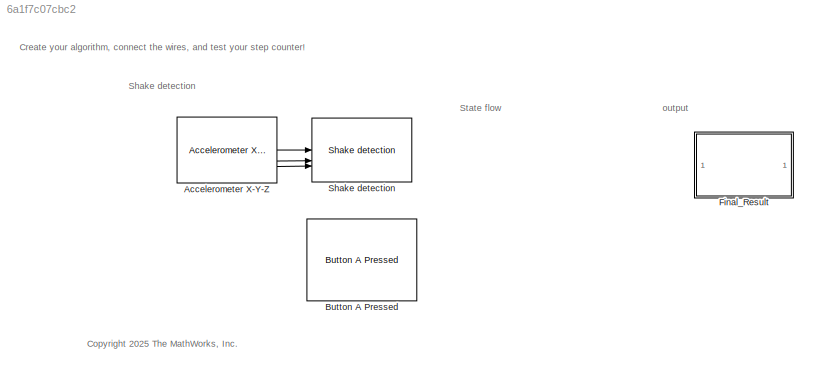
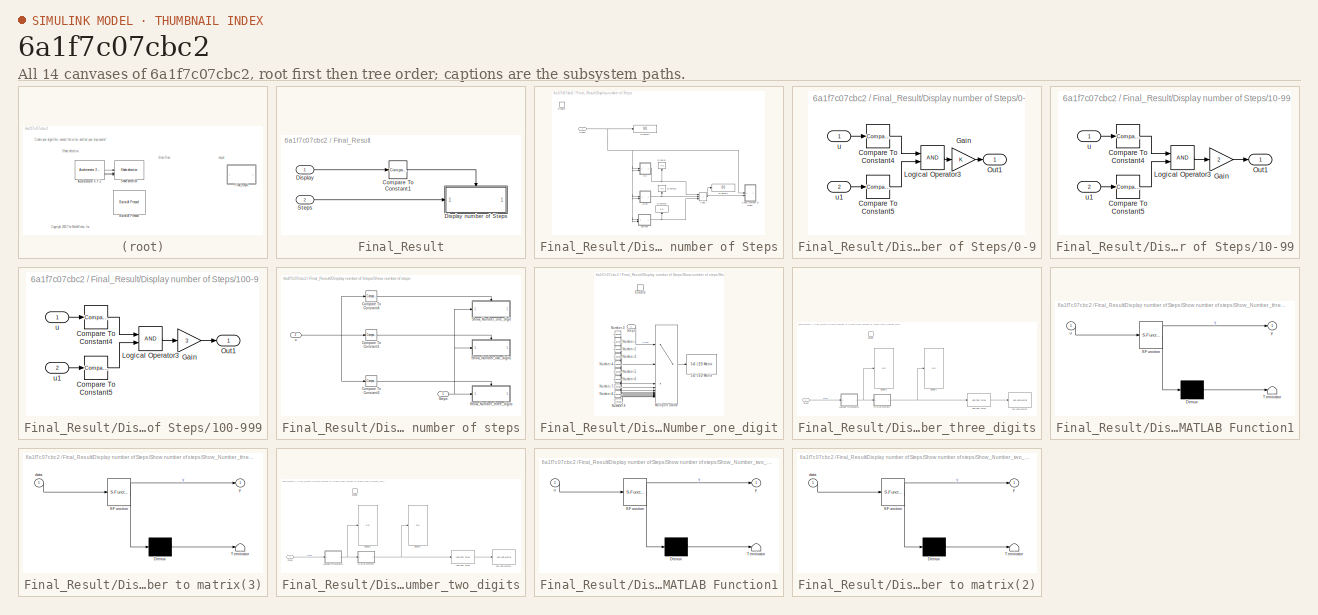
[diagram: thumbnail index - all 14 canvases of the model, root first then tree order]
MODEL slx_6a1f7c07cbc2
KIND model
CONFIG AbsTol = auto
CONFIG EnableMultiTasking = off
CONFIG FixedStep = auto
CONFIG MaxStep = auto
CONFIG MinStep = auto
CONFIG RelTol = 1e-3
CONFIG SampleTimeConstraint = Unconstrained
CONFIG SolverName = FixedStepDiscrete
CONFIG StartTime = 0.0
CONFIG StopTime = inf
BLOCK [Reference] Accelerometer X-Y-Z  REF=microbitaccellib/Accelerometer X-Y-Z
  SourceBlock = microbitaccellib/Accelerometer X-Y-Z
  SourceType = BBC micro:bit Accelerometer X-Y-Z
BLOCK [Reference] Button A Pressed  REF=microbitbuttonlib/Button A Pressed
  SourceBlock = microbitbuttonlib/Button A Pressed
  SourceType = BBC micro:bit Button A Pressed
BLOCK [SubSystem] Final_Result
BLOCK [Reference] Final_Result/Compare To Constant1  REF=simulink/Logic and Bit
Operations/Compare
To Constant
  SourceBlock = simulink/Logic and Bit\nOperations/Compare\nTo Constant
  SourceType = Compare To Constant
BLOCK [Inport] Final_Result/Display
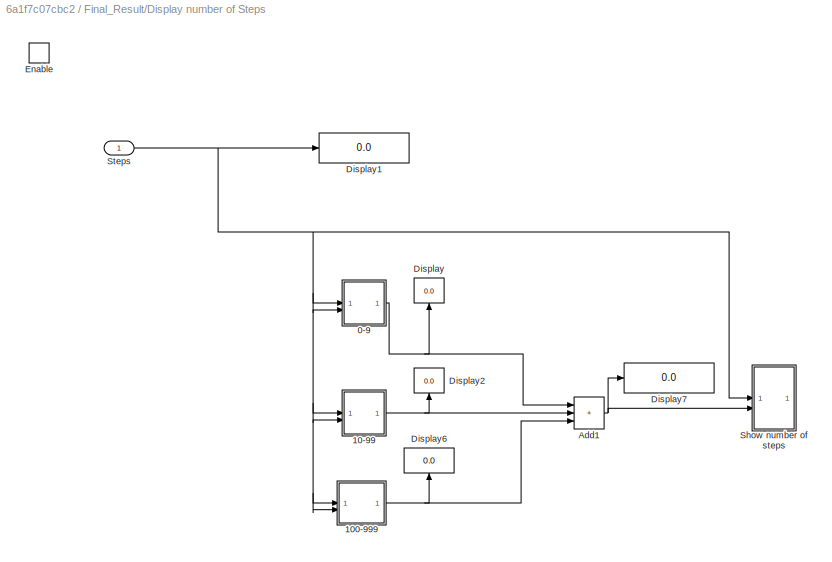
BLOCK [SubSystem] Final_Result/Display number of Steps
  TreatAsAtomicUnit = on
BLOCK [SubSystem] Final_Result/Display number of Steps/0-9
BLOCK [Reference] Final_Result/Display number of Steps/0-9/Compare To Constant4  REF=simulink/Logic and Bit
Operations/Compare
To Constant
  SourceBlock = simulink/Logic and Bit\nOperations/Compare\nTo Constant
  SourceType = Compare To Constant
BLOCK [Reference] Final_Result/Display number of Steps/0-9/Compare To Constant5  REF=simulink/Logic and Bit
Operations/Compare
To Constant
  SourceBlock = simulink/Logic and Bit\nOperations/Compare\nTo Constant
  SourceType = Compare To Constant
BLOCK [Gain] Final_Result/Display number of Steps/0-9/Gain
BLOCK [Logic] Final_Result/Display number of Steps/0-9/Logical Operator3
  AllPortsSameDT = off
  OutDataTypeStr = boolean
BLOCK [Outport] Final_Result/Display number of Steps/0-9/Out1
BLOCK [Inport] Final_Result/Display number of Steps/0-9/u
BLOCK [Inport] Final_Result/Display number of Steps/0-9/u1
  Port = 2
BLOCK [SubSystem] Final_Result/Display number of Steps/10-99
BLOCK [Reference] Final_Result/Display number of Steps/10-99/Compare To Constant4  REF=simulink/Logic and Bit
Operations/Compare
To Constant
  SourceBlock = simulink/Logic and Bit\nOperations/Compare\nTo Constant
  SourceType = Compare To Constant
BLOCK [Reference] Final_Result/Display number of Steps/10-99/Compare To Constant5  REF=simulink/Logic and Bit
Operations/Compare
To Constant
  SourceBlock = simulink/Logic and Bit\nOperations/Compare\nTo Constant
  SourceType = Compare To Constant
BLOCK [Gain] Final_Result/Display number of Steps/10-99/Gain
  Gain = 2
BLOCK [Logic] Final_Result/Display number of Steps/10-99/Logical Operator3
  AllPortsSameDT = off
  OutDataTypeStr = boolean
BLOCK [Outport] Final_Result/Display number of Steps/10-99/Out1
BLOCK [Inport] Final_Result/Display number of Steps/10-99/u
BLOCK [Inport] Final_Result/Display number of Steps/10-99/u1
  Port = 2
BLOCK [SubSystem] Final_Result/Display number of Steps/100-999
BLOCK [Reference] Final_Result/Display number of Steps/100-999/Compare To Constant4  REF=simulink/Logic and Bit
Operations/Compare
To Constant
  SourceBlock = simulink/Logic and Bit\nOperations/Compare\nTo Constant
  SourceType = Compare To Constant
BLOCK [Reference] Final_Result/Display number of Steps/100-999/Compare To Constant5  REF=simulink/Logic and Bit
Operations/Compare
To Constant
  SourceBlock = simulink/Logic and Bit\nOperations/Compare\nTo Constant
  SourceType = Compare To Constant
BLOCK [Gain] Final_Result/Display number of Steps/100-999/Gain
  Gain = 3
BLOCK [Logic] Final_Result/Display number of Steps/100-999/Logical Operator3
  AllPortsSameDT = off
  OutDataTypeStr = boolean
BLOCK [Outport] Final_Result/Display number of Steps/100-999/Out1
BLOCK [Inport] Final_Result/Display number of Steps/100-999/u
BLOCK [Inport] Final_Result/Display number of Steps/100-999/u1
  Port = 2
BLOCK [Sum] Final_Result/Display number of Steps/Add1
  IconShape = rectangular
  Inputs = +++
BLOCK [Display] Final_Result/Display number of Steps/Display
  Decimation = 1
  NameLocation = right
BLOCK [Display] Final_Result/Display number of Steps/Display1
  Decimation = 1
BLOCK [Display] Final_Result/Display number of Steps/Display2
  Decimation = 1
  NameLocation = right
BLOCK [Display] Final_Result/Display number of Steps/Display6
  Decimation = 1
  NameLocation = right
BLOCK [Display] Final_Result/Display number of Steps/Display7
  Decimation = 1
BLOCK [EnablePort] Final_Result/Display number of Steps/Enable
BLOCK [SubSystem] Final_Result/Display number of Steps/Show number of steps
BLOCK [Reference] Final_Result/Display number of Steps/Show number of steps/Compare To Constant1  REF=simulink/Logic and Bit
Operations/Compare
To Constant
  SourceBlock = simulink/Logic and Bit\nOperations/Compare\nTo Constant
  SourceType = Compare To Constant
BLOCK [Reference] Final_Result/Display number of Steps/Show number of steps/Compare To Constant3  REF=simulink/Logic and Bit
Operations/Compare
To Constant
  SourceBlock = simulink/Logic and Bit\nOperations/Compare\nTo Constant
  SourceType = Compare To Constant
BLOCK [Reference] Final_Result/Display number of Steps/Show number of steps/Compare To Constant4  REF=simulink/Logic and Bit
Operations/Compare
To Constant
  SourceBlock = simulink/Logic and Bit\nOperations/Compare\nTo Constant
  SourceType = Compare To Constant
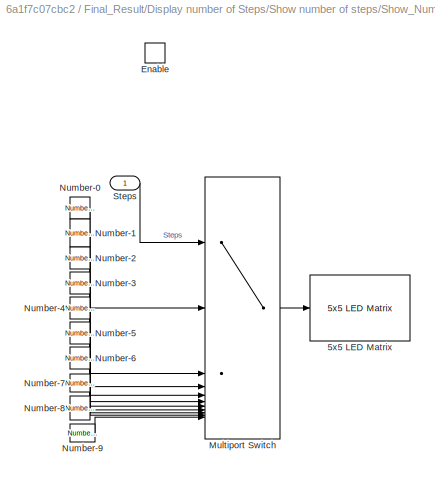
BLOCK [SubSystem] Final_Result/Display number of Steps/Show number of steps/Show_Number_one_digit
  TreatAsAtomicUnit = on
BLOCK [Reference] Final_Result/Display number of Steps/Show number of steps/Show_Number_one_digit/5x5 LED Matrix  REF=microbitledlib/5x5 LED Matrix
  SourceBlock = microbitledlib/5x5 LED Matrix
  SourceType = BBC micro:bit 5x5 LED Matrix
BLOCK [EnablePort] Final_Result/Display number of Steps/Show number of steps/Show_Number_one_digit/Enable
BLOCK [MultiPortSwitch] Final_Result/Display number of Steps/Show number of steps/Show_Number_one_digit/Multiport Switch
  DataPortIndices = {0,1,2,3,4,5,6,7,8,9}
  DataPortOrder = Specify indices
  DiagnosticForDefault = None
  InputSameDT = off
  Inputs = 9
  SaturateOnIntegerOverflow = off
BLOCK [Reference] Final_Result/Display number of Steps/Show number of steps/Show_Number_one_digit/Number-0  REF=microbitledlib/LED Images/Number-0
  SourceBlock = microbitledlib/LED Images/Number-0
BLOCK [Reference] Final_Result/Display number of Steps/Show number of steps/Show_Number_one_digit/Number-1  REF=microbitledlib/LED Images/Number-1
  SourceBlock = microbitledlib/LED Images/Number-1
BLOCK [Reference] Final_Result/Display number of Steps/Show number of steps/Show_Number_one_digit/Number-2  REF=microbitledlib/LED Images/Number-2
  SourceBlock = microbitledlib/LED Images/Number-2
BLOCK [Reference] Final_Result/Display number of Steps/Show number of steps/Show_Number_one_digit/Number-3  REF=microbitledlib/LED Images/Number-3
  SourceBlock = microbitledlib/LED Images/Number-3
BLOCK [Reference] Final_Result/Display number of Steps/Show number of steps/Show_Number_one_digit/Number-4  REF=microbitledlib/LED Images/Number-4
  SourceBlock = microbitledlib/LED Images/Number-4
BLOCK [Reference] Final_Result/Display number of Steps/Show number of steps/Show_Number_one_digit/Number-5  REF=microbitledlib/LED Images/Number-5
  SourceBlock = microbitledlib/LED Images/Number-5
BLOCK [Reference] Final_Result/Display number of Steps/Show number of steps/Show_Number_one_digit/Number-6  REF=microbitledlib/LED Images/Number-6
  SourceBlock = microbitledlib/LED Images/Number-6
BLOCK [Reference] Final_Result/Display number of Steps/Show number of steps/Show_Number_one_digit/Number-7  REF=microbitledlib/LED Images/Number-7
  SourceBlock = microbitledlib/LED Images/Number-7
BLOCK [Reference] Final_Result/Display number of Steps/Show number of steps/Show_Number_one_digit/Number-8  REF=microbitledlib/LED Images/Number-8
  SourceBlock = microbitledlib/LED Images/Number-8
BLOCK [Reference] Final_Result/Display number of Steps/Show number of steps/Show_Number_one_digit/Number-9  REF=microbitledlib/LED Images/Number-9
  SourceBlock = microbitledlib/LED Images/Number-9
BLOCK [Inport] Final_Result/Display number of Steps/Show number of steps/Show_Number_one_digit/Steps
  IconDisplay = Signal name
BLOCK [SubSystem] Final_Result/Display number of Steps/Show number of steps/Show_Number_three_digits
  TreatAsAtomicUnit = on
BLOCK [Reference] Final_Result/Display number of Steps/Show number of steps/Show_Number_three_digits/5x5 LED Matrix1  REF=microbitledlib/5x5 LED Matrix
  SourceBlock = microbitledlib/5x5 LED Matrix
  SourceType = BBC micro:bit 5x5 LED Matrix
BLOCK [Display] Final_Result/Display number of Steps/Show number of steps/Show_Number_three_digits/Display1
  Decimation = 1
BLOCK [Display] Final_Result/Display number of Steps/Show number of steps/Show_Number_three_digits/Display2
  Decimation = 1
BLOCK [EnablePort] Final_Result/Display number of Steps/Show number of steps/Show_Number_three_digits/Enable
BLOCK [Reference] Final_Result/Display number of Steps/Show number of steps/Show_Number_three_digits/LED Text Scroll  REF=microbitledlib/LED Text Scroll
  SourceBlock = microbitledlib/LED Text Scroll
  SourceType = LED Text Scroll
BLOCK [SubSystem] Final_Result/Display number of Steps/Show number of steps/Show_Number_three_digits/MATLAB Function1
  ErrorFcn = Stateflow.Translate.translate
  LibrarySourceBlock = simulink/User-Defined\nFunctions/MATLAB Function
  PermitHierarchicalResolution = ExplicitOnly
  SFBlockType = MATLAB Function
  TreatAsAtomicUnit = on
BLOCK [Demux] Final_Result/Display number of Steps/Show number of steps/Show_Number_three_digits/MATLAB Function1/ Demux 
  Outputs = 1
BLOCK [S-Function] Final_Result/Display number of Steps/Show number of steps/Show_Number_three_digits/MATLAB Function1/ SFunction 
  EnableBusSupport = off
  FunctionName = sf_sfun
  PortCounts = [1 2]
  SFcnIsStateOwnerBlock = off
  SFunctionDeploymentMode = off
  Tag = Stateflow S-Function 9
BLOCK [Terminator] Final_Result/Display number of Steps/Show number of steps/Show_Number_three_digits/MATLAB Function1/ Terminator 
BLOCK [Inport] Final_Result/Display number of Steps/Show number of steps/Show_Number_three_digits/MATLAB Function1/u
BLOCK [Outport] Final_Result/Display number of Steps/Show number of steps/Show_Number_three_digits/MATLAB Function1/y
BLOCK [Inport] Final_Result/Display number of Steps/Show number of steps/Show_Number_three_digits/Steps
  IconDisplay = Signal name
BLOCK [SubSystem] Final_Result/Display number of Steps/Show number of steps/Show_Number_three_digits/number to matrix(3)
  ErrorFcn = Stateflow.Translate.translate
  LibrarySourceBlock = simulink/User-Defined\nFunctions/MATLAB Function
  PermitHierarchicalResolution = ExplicitOnly
  SFBlockType = MATLAB Function
  TreatAsAtomicUnit = on
BLOCK [Demux] Final_Result/Display number of Steps/Show number of steps/Show_Number_three_digits/number to matrix(3)/ Demux 
  Outputs = 1
BLOCK [S-Function] Final_Result/Display number of Steps/Show number of steps/Show_Number_three_digits/number to matrix(3)/ SFunction 
  EnableBusSupport = off
  FunctionName = sf_sfun
  PortCounts = [1 2]
  SFcnIsStateOwnerBlock = off
  SFunctionDeploymentMode = off
  Tag = Stateflow S-Function 10
BLOCK [Terminator] Final_Result/Display number of Steps/Show number of steps/Show_Number_three_digits/number to matrix(3)/ Terminator 
BLOCK [Inport] Final_Result/Display number of Steps/Show number of steps/Show_Number_three_digits/number to matrix(3)/data
BLOCK [Outport] Final_Result/Display number of Steps/Show number of steps/Show_Number_three_digits/number to matrix(3)/y
BLOCK [SubSystem] Final_Result/Display number of Steps/Show number of steps/Show_Number_two_digits
  TreatAsAtomicUnit = on
BLOCK [Reference] Final_Result/Display number of Steps/Show number of steps/Show_Number_two_digits/5x5 LED Matrix1  REF=microbitledlib/5x5 LED Matrix
  SourceBlock = microbitledlib/5x5 LED Matrix
  SourceType = BBC micro:bit 5x5 LED Matrix
BLOCK [Display] Final_Result/Display number of Steps/Show number of steps/Show_Number_two_digits/Display1
  Decimation = 1
BLOCK [Display] Final_Result/Display number of Steps/Show number of steps/Show_Number_two_digits/Display2
  Decimation = 1
BLOCK [EnablePort] Final_Result/Display number of Steps/Show number of steps/Show_Number_two_digits/Enable
BLOCK [Reference] Final_Result/Display number of Steps/Show number of steps/Show_Number_two_digits/LED Text Scroll  REF=microbitledlib/LED Text Scroll
  SourceBlock = microbitledlib/LED Text Scroll
  SourceType = LED Text Scroll
BLOCK [SubSystem] Final_Result/Display number of Steps/Show number of steps/Show_Number_two_digits/MATLAB Function1
  ErrorFcn = Stateflow.Translate.translate
  LibrarySourceBlock = simulink/User-Defined\nFunctions/MATLAB Function
  PermitHierarchicalResolution = ExplicitOnly
  SFBlockType = MATLAB Function
  TreatAsAtomicUnit = on
BLOCK [Demux] Final_Result/Display number of Steps/Show number of steps/Show_Number_two_digits/MATLAB Function1/ Demux 
  Outputs = 1
BLOCK [S-Function] Final_Result/Display number of Steps/Show number of steps/Show_Number_two_digits/MATLAB Function1/ SFunction 
  EnableBusSupport = off
  FunctionName = sf_sfun
  PortCounts = [1 2]
  SFcnIsStateOwnerBlock = off
  SFunctionDeploymentMode = off
  Tag = Stateflow S-Function 8
BLOCK [Terminator] Final_Result/Display number of Steps/Show number of steps/Show_Number_two_digits/MATLAB Function1/ Terminator 
BLOCK [Inport] Final_Result/Display number of Steps/Show number of steps/Show_Number_two_digits/MATLAB Function1/u
BLOCK [Outport] Final_Result/Display number of Steps/Show number of steps/Show_Number_two_digits/MATLAB Function1/y
BLOCK [Inport] Final_Result/Display number of Steps/Show number of steps/Show_Number_two_digits/Steps
  IconDisplay = Signal name
BLOCK [SubSystem] Final_Result/Display number of Steps/Show number of steps/Show_Number_two_digits/number to matrix(2)
  ErrorFcn = Stateflow.Translate.translate
  LibrarySourceBlock = simulink/User-Defined\nFunctions/MATLAB Function
  PermitHierarchicalResolution = ExplicitOnly
  SFBlockType = MATLAB Function
  TreatAsAtomicUnit = on
BLOCK [Demux] Final_Result/Display number of Steps/Show number of steps/Show_Number_two_digits/number to matrix(2)/ Demux 
  Outputs = 1
BLOCK [S-Function] Final_Result/Display number of Steps/Show number of steps/Show_Number_two_digits/number to matrix(2)/ SFunction 
  EnableBusSupport = off
  FunctionName = sf_sfun
  PortCounts = [1 2]
  SFcnIsStateOwnerBlock = off
  SFunctionDeploymentMode = off
  Tag = Stateflow S-Function 7
BLOCK [Terminator] Final_Result/Display number of Steps/Show number of steps/Show_Number_two_digits/number to matrix(2)/ Terminator 
BLOCK [Inport] Final_Result/Display number of Steps/Show number of steps/Show_Number_two_digits/number to matrix(2)/data
BLOCK [Outport] Final_Result/Display number of Steps/Show number of steps/Show_Number_two_digits/number to matrix(2)/y
BLOCK [Inport] Final_Result/Display number of Steps/Show number of steps/Steps
BLOCK [Inport] Final_Result/Display number of Steps/Show number of steps/u
  Port = 2
BLOCK [Inport] Final_Result/Display number of Steps/Steps
BLOCK [Inport] Final_Result/Steps
  Port = 2
BLOCK [Reference] Shake detection  REF=microbitaccellib/Shake detection
  SourceBlock = microbitaccellib/Shake detection
  SourceType = BBC micro:bit Accelerometer Shake detection
ANNOTATION (root): Create your algorithm, connect the wires, and test your step counter!
ANNOTATION (root): <copyright redacted>
ANNOTATION (root): Shake detection
ANNOTATION (root): State flow
ANNOTATION (root): output
LINE Accelerometer X-Y-Z:1 -> Shake detection:1
LINE Accelerometer X-Y-Z:2 -> Shake detection:2
LINE Accelerometer X-Y-Z:3 -> Shake detection:3
LINE Final_Result/Compare To Constant1:1 -> Final_Result/Display number of Steps:enable
LINE Final_Result/Display number of Steps/0-9/Compare To Constant4:1 -> Final_Result/Display number of Steps/0-9/Logical Operator3:1
LINE Final_Result/Display number of Steps/0-9/Compare To Constant5:1 -> Final_Result/Display number of Steps/0-9/Logical Operator3:2
LINE Final_Result/Display number of Steps/0-9/Gain:1 -> Final_Result/Display number of Steps/0-9/Out1:1
LINE Final_Result/Display number of Steps/0-9/Logical Operator3:1 -> Final_Result/Display number of Steps/0-9/Gain:1
LINE Final_Result/Display number of Steps/0-9/u1:1 -> Final_Result/Display number of Steps/0-9/Compare To Constant5:1
LINE Final_Result/Display number of Steps/0-9/u:1 -> Final_Result/Display number of Steps/0-9/Compare To Constant4:1
NET Final_Result/Display number of Steps/0-9:1 -> Final_Result/Display number of Steps/Add1:1, Final_Result/Display number of Steps/Display:1
LINE Final_Result/Display number of Steps/10-99/Compare To Constant4:1 -> Final_Result/Display number of Steps/10-99/Logical Operator3:1
LINE Final_Result/Display number of Steps/10-99/Compare To Constant5:1 -> Final_Result/Display number of Steps/10-99/Logical Operator3:2
LINE Final_Result/Display number of Steps/10-99/Gain:1 -> Final_Result/Display number of Steps/10-99/Out1:1
LINE Final_Result/Display number of Steps/10-99/Logical Operator3:1 -> Final_Result/Display number of Steps/10-99/Gain:1
LINE Final_Result/Display number of Steps/10-99/u1:1 -> Final_Result/Display number of Steps/10-99/Compare To Constant5:1
LINE Final_Result/Display number of Steps/10-99/u:1 -> Final_Result/Display number of Steps/10-99/Compare To Constant4:1
NET Final_Result/Display number of Steps/10-99:1 -> Final_Result/Display number of Steps/Add1:2, Final_Result/Display number of Steps/Display2:1
LINE Final_Result/Display number of Steps/100-999/Compare To Constant4:1 -> Final_Result/Display number of Steps/100-999/Logical Operator3:1
LINE Final_Result/Display number of Steps/100-999/Compare To Constant5:1 -> Final_Result/Display number of Steps/100-999/Logical Operator3:2
LINE Final_Result/Display number of Steps/100-999/Gain:1 -> Final_Result/Display number of Steps/100-999/Out1:1
LINE Final_Result/Display number of Steps/100-999/Logical Operator3:1 -> Final_Result/Display number of Steps/100-999/Gain:1
LINE Final_Result/Display number of Steps/100-999/u1:1 -> Final_Result/Display number of Steps/100-999/Compare To Constant5:1
LINE Final_Result/Display number of Steps/100-999/u:1 -> Final_Result/Display number of Steps/100-999/Compare To Constant4:1
NET Final_Result/Display number of Steps/100-999:1 -> Final_Result/Display number of Steps/Add1:3, Final_Result/Display number of Steps/Display6:1
NET Final_Result/Display number of Steps/Add1:1 -> Final_Result/Display number of Steps/Display7:1, Final_Result/Display number of Steps/Show number of steps:2
LINE Final_Result/Display number of Steps/Show number of steps/Compare To Constant1:1 -> Final_Result/Display number of Steps/Show number of steps/Show_Number_two_digits:enable
LINE Final_Result/Display number of Steps/Show number of steps/Compare To Constant3:1 -> Final_Result/Display number of Steps/Show number of steps/Show_Number_three_digits:enable
LINE Final_Result/Display number of Steps/Show number of steps/Compare To Constant4:1 -> Final_Result/Display number of Steps/Show number of steps/Show_Number_one_digit:enable
LINE Final_Result/Display number of Steps/Show number of steps/Show_Number_one_digit/Multiport Switch:1 -> Final_Result/Display number of Steps/Show number of steps/Show_Number_one_digit/5x5 LED Matrix:1
LINE Final_Result/Display number of Steps/Show number of steps/Show_Number_one_digit/Number-0:1 -> Final_Result/Display number of Steps/Show number of steps/Show_Number_one_digit/Multiport Switch:2
LINE Final_Result/Display number of Steps/Show number of steps/Show_Number_one_digit/Number-1:1 -> Final_Result/Display number of Steps/Show number of steps/Show_Number_one_digit/Multiport Switch:3
LINE Final_Result/Display number of Steps/Show number of steps/Show_Number_one_digit/Number-2:1 -> Final_Result/Display number of Steps/Show number of steps/Show_Number_one_digit/Multiport Switch:4
LINE Final_Result/Display number of Steps/Show number of steps/Show_Number_one_digit/Number-3:1 -> Final_Result/Display number of Steps/Show number of steps/Show_Number_one_digit/Multiport Switch:5
LINE Final_Result/Display number of Steps/Show number of steps/Show_Number_one_digit/Number-4:1 -> Final_Result/Display number of Steps/Show number of steps/Show_Number_one_digit/Multiport Switch:6
LINE Final_Result/Display number of Steps/Show number of steps/Show_Number_one_digit/Number-5:1 -> Final_Result/Display number of Steps/Show number of steps/Show_Number_one_digit/Multiport Switch:7
LINE Final_Result/Display number of Steps/Show number of steps/Show_Number_one_digit/Number-6:1 -> Final_Result/Display number of Steps/Show number of steps/Show_Number_one_digit/Multiport Switch:8
LINE Final_Result/Display number of Steps/Show number of steps/Show_Number_one_digit/Number-7:1 -> Final_Result/Display number of Steps/Show number of steps/Show_Number_one_digit/Multiport Switch:9
LINE Final_Result/Display number of Steps/Show number of steps/Show_Number_one_digit/Number-8:1 -> Final_Result/Display number of Steps/Show number of steps/Show_Number_one_digit/Multiport Switch:10
LINE Final_Result/Display number of Steps/Show number of steps/Show_Number_one_digit/Number-9:1 -> Final_Result/Display number of Steps/Show number of steps/Show_Number_one_digit/Multiport Switch:11
LINE Final_Result/Display number of Steps/Show number of steps/Show_Number_one_digit/Steps:1 -> Final_Result/Display number of Steps/Show number of steps/Show_Number_one_digit/Multiport Switch:1
LINE Final_Result/Display number of Steps/Show number of steps/Show_Number_three_digits/LED Text Scroll:1 -> Final_Result/Display number of Steps/Show number of steps/Show_Number_three_digits/5x5 LED Matrix1:1
NET Final_Result/Display number of Steps/Show number of steps/Show_Number_three_digits/MATLAB Function1:1 -> Final_Result/Display number of Steps/Show number of steps/Show_Number_three_digits/Display1:1, Final_Result/Display number of Steps/Show number of steps/Show_Number_three_digits/LED Text Scroll:1
LINE Final_Result/Display number of Steps/Show number of steps/Show_Number_three_digits/Steps:1 -> Final_Result/Display number of Steps/Show number of steps/Show_Number_three_digits/number to matrix(3):1
NET Final_Result/Display number of Steps/Show number of steps/Show_Number_three_digits/number to matrix(3):1 -> Final_Result/Display number of Steps/Show number of steps/Show_Number_three_digits/Display2:1, Final_Result/Display number of Steps/Show number of steps/Show_Number_three_digits/MATLAB Function1:1
LINE Final_Result/Display number of Steps/Show number of steps/Show_Number_two_digits/LED Text Scroll:1 -> Final_Result/Display number of Steps/Show number of steps/Show_Number_two_digits/5x5 LED Matrix1:1
NET Final_Result/Display number of Steps/Show number of steps/Show_Number_two_digits/MATLAB Function1:1 -> Final_Result/Display number of Steps/Show number of steps/Show_Number_two_digits/Display1:1, Final_Result/Display number of Steps/Show number of steps/Show_Number_two_digits/LED Text Scroll:1
LINE Final_Result/Display number of Steps/Show number of steps/Show_Number_two_digits/Steps:1 -> Final_Result/Display number of Steps/Show number of steps/Show_Number_two_digits/number to matrix(2):1
NET Final_Result/Display number of Steps/Show number of steps/Show_Number_two_digits/number to matrix(2):1 -> Final_Result/Display number of Steps/Show number of steps/Show_Number_two_digits/Display2:1, Final_Result/Display number of Steps/Show number of steps/Show_Number_two_digits/MATLAB Function1:1
NET Final_Result/Display number of Steps/Show number of steps/Steps:1 -> Final_Result/Display number of Steps/Show number of steps/Show_Number_one_digit:1, Final_Result/Display number of Steps/Show number of steps/Show_Number_three_digits:1, Final_Result/Display number of Steps/Show number of steps/Show_Number_two_digits:1
NET Final_Result/Display number of Steps/Show number of steps/u:1 -> Final_Result/Display number of Steps/Show number of steps/Compare To Constant1:1, Final_Result/Display number of Steps/Show number of steps/Compare To Constant3:1, Final_Result/Display number of Steps/Show number of steps/Compare To Constant4:1
NET Final_Result/Display number of Steps/Steps:1 -> Final_Result/Display number of Steps/0-9:1, Final_Result/Display number of Steps/0-9:2, Final_Result/Display number of Steps/10-99:1, Final_Result/Display number of Steps/10-99:2, Final_Result/Display number of Steps/100-999:1, Final_Result/Display number of Steps/100-999:2, Final_Result/Display number of Steps/Display1:1, Final_Result/Display number of Steps/Show number of steps:1
LINE Final_Result/Display:1 -> Final_Result/Compare To Constant1:1
LINE Final_Result/Steps:1 -> Final_Result/Display number of Steps:1
note: NET lines group one-source signal fan-out (src -> all destinations, sorted); 1:1 wires keep LINE
CHART Final_Result/Display number of Steps/Show number of steps/Show_Number_two_digits/number to matrix(2) states=1 transitions=1
  STATE_LABEL 'eML_blk_kernel()'
  STATE_LABEL 'SCRIPT:\nfunction y = fcn(data)\n\n\n    c=zeros(1,2);\n    c(1,1)=mod(data,10)+48;\n    data=floor(data/10);\n    c(1,2)=mod(data,10)+48;\n    c=flip(c);\n    y=c;\n\n\n\n\n\n\n\n'
CHART Final_Result/Display number of Steps/Show number of steps/Show_Number_two_digits/MATLAB Function1 states=1 transitions=1
  STATE_LABEL 'eML_blk_kernel()'
  STATE_LABEL "SCRIPT:\nfunction y = fcn(u)\n\n\nif(size(u,1)>1) % do this check for constant blocks, where the\n    uu = u';\nelse\n    uu=u;\nend\n\nuu=upper(char(uu));\n\ny = uint8(horzcat(uint8(uu) , zeros(1 , 254 - size(uu, 2))));\n\n\n\n"
CHART Final_Result/Display number of Steps/Show number of steps/Show_Number_three_digits/MATLAB Function1 states=1 transitions=1
  STATE_LABEL 'eML_blk_kernel()'
  STATE_LABEL "SCRIPT:\nfunction y = fcn(u)\n\n\nif(size(u,1)>1) % do this check for constant blocks, where the\n    uu = u';\nelse\n    uu=u;\nend\n\nuu=upper(char(uu));\n\ny = uint8(horzcat(uint8(uu) , zeros(1 , 254 - size(uu, 2))));\n\n\n\n"
CHART Final_Result/Display number of Steps/Show number of steps/Show_Number_three_digits/number to matrix(3) states=1 transitions=1
  STATE_LABEL 'eML_blk_kernel()'
  STATE_LABEL 'SCRIPT:\nfunction y = fcn(data)\n\n\n    c=zeros(1,3);\n    c(1,1)=mod(data,10)+48;\n\n    data=floor(data/10);\n    c(1,2)=mod(data,10)+48;\n\n    data=floor(data/10);\n    c(1,3)=mod(data,10)+48;\n\n    c=flip(c);\n    y=c;\n\n\n\n\n\n\n\n'
CHART  states=0 transitions=0
CHART  states=0 transitions=0
CHART  states=0 transitions=0
CHART  states=0 transitions=0
